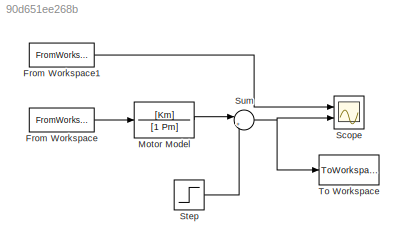
MODEL slx_90d651ee268b
KIND model
CONFIG AbsTol = auto
CONFIG EnableMultiTasking = off
CONFIG FixedStep = auto
CONFIG MaxStep = auto
CONFIG MinStep = auto
CONFIG RelTol = 1e-3
CONFIG SampleTimeConstraint = Unconstrained
CONFIG Solver = VariableStepAuto
CONFIG SolverName = VariableStepAuto
CONFIG StartTime = 0.0
CONFIG StopTime = 11.0
BLOCK [FromWorkspace] From Workspace
  SampleTime = Ts
  VariableName = input_simulink
  ZeroCross = on
BLOCK [FromWorkspace] From Workspace1
  SampleTime = Ts
  VariableName = data_to_simulink
  ZeroCross = on
BLOCK [TransferFcn] Motor Model
  Denominator = [1 Pm]
  Numerator = [Km]
BLOCK [Scope] Scope
  Floating = off
  NumInputPorts = 2
  Ports = [2]
  ScopeSpecificationString = Simulink.scopes.TimeScopeBlockCfg('CurrentConfiguration', extmgr.ConfigurationSet(extmgr.Configuration('Core','General UI',true),extmgr.Configuration('Core','Source UI',true),extmgr.Configuration('Sources','WiredSimulink',true),extmgr.Configuration('Visuals','Time Domain',true,'SerializedDisplays',{struct('MinYLimReal','-612.96828','MaxYLimReal','3916.71455','YLabelReal','','MinYLimMag',' 0.00000'...<+1404ch>
BLOCK [Step] Step
  After = 160
  SampleTime = Ts
BLOCK [Sum] Sum
  IconShape = round
  InputSameDT = off
  Inputs = |+-
  OutDataTypeStr = Inherit: Inherit via internal rule
  Ports = [2, 1]
  SaturateOnIntegerOverflow = off
BLOCK [ToWorkspace] To Workspace
  FixptAsFi = on
  MaxDataPoints = inf
  Ports = [1]
  SampleTime = Ts
  Save2DSignal = 2-D array (concatenate along first dimension)
  VariableName = resp_modelo
LINE From Workspace1:1 -> Scope:1
LINE From Workspace:1 -> Motor Model:1
LINE Motor Model:1 -> Sum:1
LINE Step:1 -> Sum:2
NET Sum:1 -> Scope:2, To Workspace:1
note: NET lines group one-source signal fan-out (src -> all destinations, sorted); 1:1 wires keep LINE
